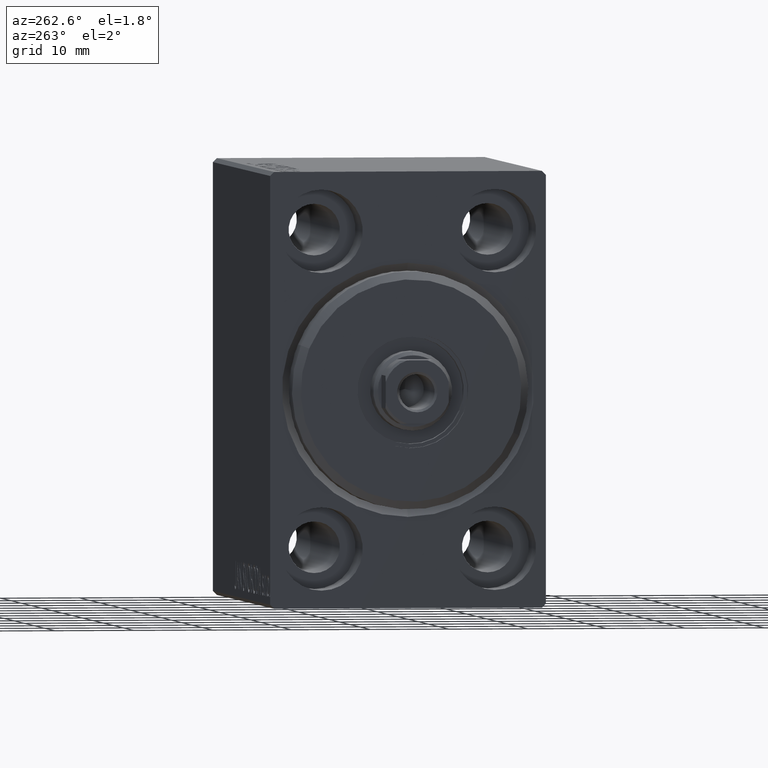
[diagram: clean part render]
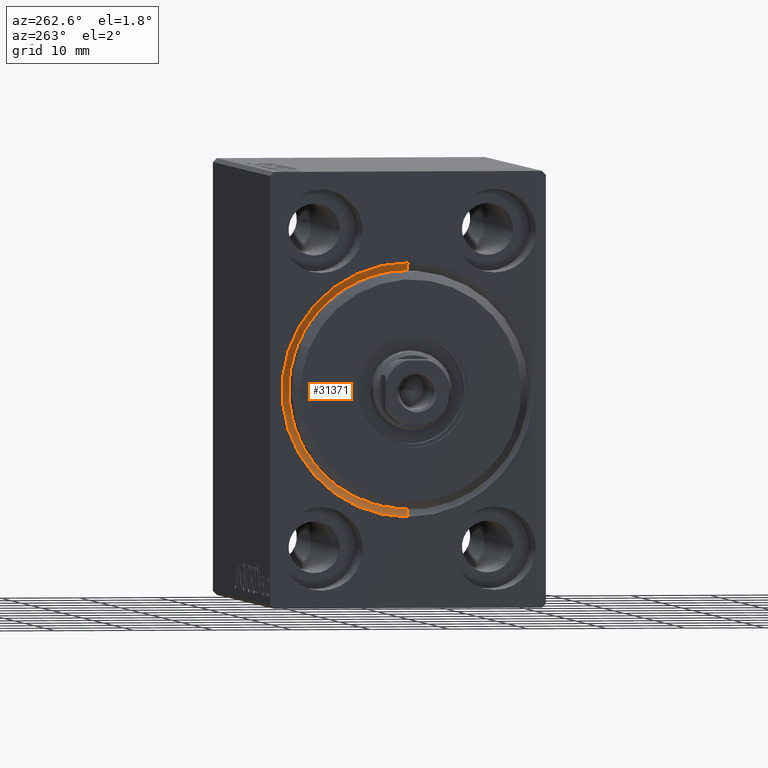
[diagram: same view with one face highlighted and labeled with its STEP entity id]
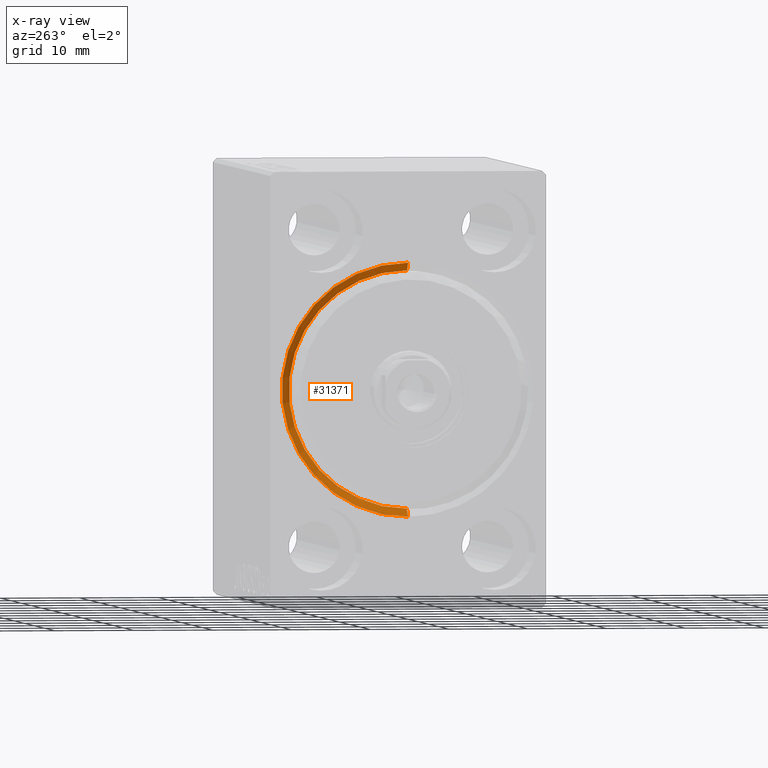
[diagram: x-ray of the same camera — body ghosted, the highlighted face saturated]
A machine part, auxiliary view. The second image highlights one B-rep face of the part: STEP entity #31371.
The next image is the same camera in x-ray: the body ghosted, the highlighted face saturated — about 0% of this face is hidden behind the body in this view.
In plain terms, the highlighted conical surface has half-angle 45 deg.
Its self-contained STEP definition (entity closure, byte-faithful):
#457 = DIRECTION ( 'NONE',  ( 0.000000000000000000, 0.000000000000000000, 1.000000000000000000 ) ) ;
#1136 = VERTEX_POINT ( 'NONE', #22947 ) ;
#4010 = FACE_OUTER_BOUND ( 'NONE', #18173, .T. ) ;
#4093 = CARTESIAN_POINT ( 'NONE',  ( 0.000000000000000000, 0.000000000000000000, 16.00000000000001421 ) ) ;
#4348 = ORIENTED_EDGE ( 'NONE', *, *, #10294, .F. ) ;
#5528 = VECTOR ( 'NONE', #27247, 1000.000000000000114 ) ;
#8220 = DIRECTION ( 'NONE',  ( 0.000000000000000000, 0.000000000000000000, -1.000000000000000000 ) ) ;
#9334 = ORIENTED_EDGE ( 'NONE', *, *, #42154, .T. ) ;
#10294 = EDGE_CURVE ( 'NONE', #1136, #43219, #32607, .T. ) ;
#10502 = LINE ( 'NONE', #30881, #32151 ) ;
#11773 = CARTESIAN_POINT ( 'NONE',  ( 1.000000000000013101, 1.836970198721029589E-15, -15.00000000000000000 ) ) ;
#11929 = DIRECTION ( 'NONE',  ( 1.000000000000000000, 0.000000000000000000, 0.000000000000000000 ) ) ;
#14827 = CARTESIAN_POINT ( 'NONE',  ( 0.000000000000000000, 0.000000000000000000, 0.000000000000000000 ) ) ;
#14945 = CIRCLE ( 'NONE', #26261, 16.00000000000001421 ) ;
#15275 = CARTESIAN_POINT ( 'NONE',  ( 0.000000000000000000, 1.959434878635766709E-15, -16.00000000000001421 ) ) ;
#17153 = EDGE_CURVE ( 'NONE', #32496, #32891, #14945, .T. ) ;
#18173 = EDGE_LOOP ( 'NONE', ( #42942, #4348, #9334, #42627 ) ) ;
#18575 = DIRECTION ( 'NONE',  ( 0.000000000000000000, 0.000000000000000000, -1.000000000000000000 ) ) ;
#20362 = LINE ( 'NONE', #24574, #5528 ) ;
#20827 = CONICAL_SURFACE ( 'NONE', #36469, 15.00000000000000000, 0.7853981633974491672 ) ;
#21109 = DIRECTION ( 'NONE',  ( -0.7071067811865469066, 8.659560562354940254E-17, -0.7071067811865481278 ) ) ;
#21299 = CARTESIAN_POINT ( 'NONE',  ( 1.000000000000013101, 0.000000000000000000, 0.000000000000000000 ) ) ;
#21940 = AXIS2_PLACEMENT_3D ( 'NONE', #21299, #34418, #8220 ) ;
#22947 = CARTESIAN_POINT ( 'NONE',  ( 1.000000000000013101, 0.000000000000000000, 15.00000000000000000 ) ) ;
#24574 = CARTESIAN_POINT ( 'NONE',  ( 1.000000000000013101, 0.000000000000000000, 15.00000000000000000 ) ) ;
#24611 = EDGE_CURVE ( 'NONE', #43219, #32496, #10502, .T. ) ;
#26261 = AXIS2_PLACEMENT_3D ( 'NONE', #14827, #11929, #18575 ) ;
#27247 = DIRECTION ( 'NONE',  ( -0.7071067811865469066, 0.000000000000000000, 0.7071067811865481278 ) ) ;
#30881 = CARTESIAN_POINT ( 'NONE',  ( 1.000000000000013101, 1.836970198721029589E-15, -15.00000000000000000 ) ) ;
#31371 = ADVANCED_FACE ( 'NONE', ( #4010 ), #20827, .F. ) ;
#32151 = VECTOR ( 'NONE', #21109, 1000.000000000000114 ) ;
#32496 = VERTEX_POINT ( 'NONE', #15275 ) ;
#32607 = CIRCLE ( 'NONE', #21940, 15.00000000000000000 ) ;
#32891 = VERTEX_POINT ( 'NONE', #4093 ) ;
#34418 = DIRECTION ( 'NONE',  ( -1.000000000000000000, 0.000000000000000000, 0.000000000000000000 ) ) ;
#36469 = AXIS2_PLACEMENT_3D ( 'NONE', #41296, #41516, #457 ) ;
#41296 = CARTESIAN_POINT ( 'NONE',  ( 1.000000000000013101, 0.000000000000000000, 0.000000000000000000 ) ) ;
#41516 = DIRECTION ( 'NONE',  ( -1.000000000000000000, 0.000000000000000000, 0.000000000000000000 ) ) ;
#42154 = EDGE_CURVE ( 'NONE', #1136, #32891, #20362, .T. ) ;
#42627 = ORIENTED_EDGE ( 'NONE', *, *, #17153, .F. ) ;
#42942 = ORIENTED_EDGE ( 'NONE', *, *, #24611, .F. ) ;
#43219 = VERTEX_POINT ( 'NONE', #11773 ) ;